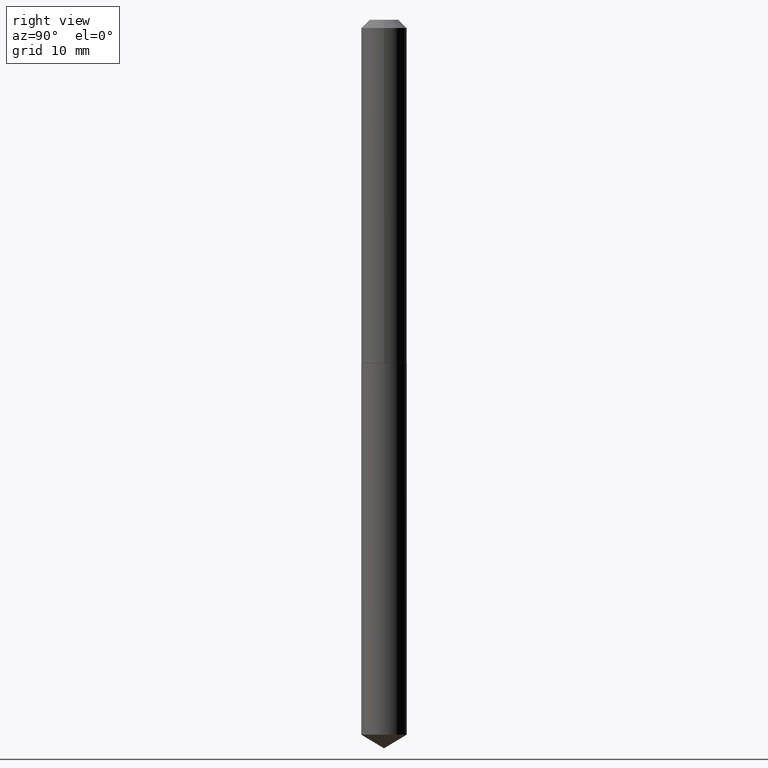
[diagram: clean part render]
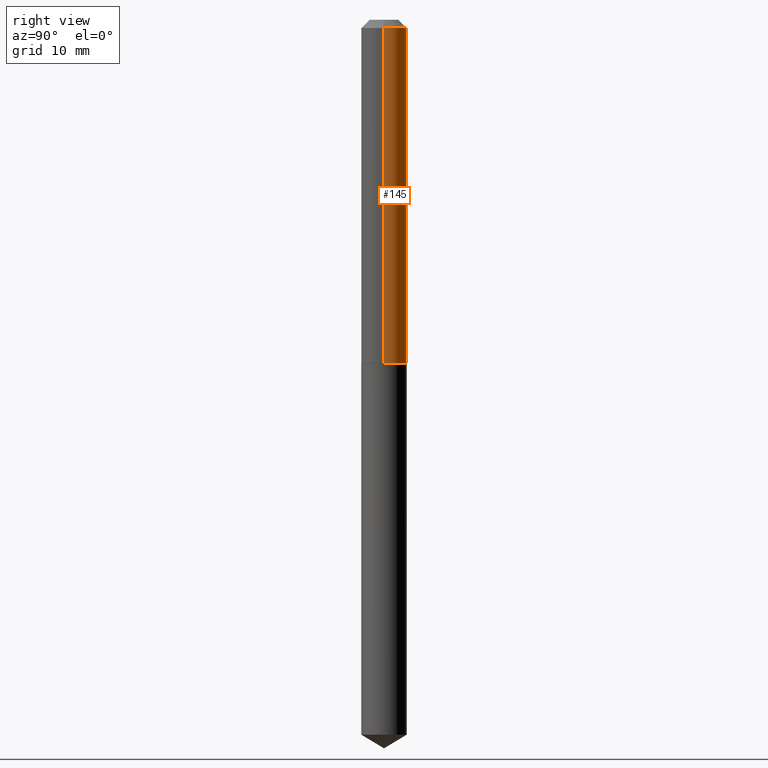
[diagram: same view with one face highlighted and labeled with its STEP entity id]
A machine part, right view. The second image highlights one B-rep face of the part: STEP entity #145.
In plain terms, the highlighted cylindrical surface (edge-blend (fillet) strip) has radius 2.1831 mm, axis along (-0, 0, 1).
Its self-contained STEP definition (entity closure, byte-faithful):
#7 = VERTEX_POINT ( 'NONE', #247 ) ;
#16 = DIRECTION ( 'NONE',  ( -2.445468806185136877E-29, 3.491481338843145188E-15, 1.000000000000000000 ) ) ;
#25 = VERTEX_POINT ( 'NONE', #285 ) ;
#36 = AXIS2_PLACEMENT_3D ( 'NONE', #217, #344, #43 ) ;
#43 = DIRECTION ( 'NONE',  ( 1.000000000000000000, -6.982962677686266711E-15, 4.876176775795936353E-29 ) ) ;
#49 = DIRECTION ( 'NONE',  ( 1.000000000000000000, -6.982962677686266711E-15, 0.000000000000000000 ) ) ;
#50 = CARTESIAN_POINT ( 'NONE',  ( -0.08595000000000005413, 6.107114813858064944E-16, -4.227824710074094392E-30 ) ) ;
#54 = VECTOR ( 'NONE', #229, 39.37007874015748143 ) ;
#55 = CARTESIAN_POINT ( 'NONE',  ( 3.170305760338410638E-29, -4.526356407676253525E-15, -1.296399999999999775 ) ) ;
#134 = LINE ( 'NONE', #258, #54 ) ;
#142 = LINE ( 'NONE', #50, #376 ) ;
#145 = ADVANCED_FACE ( 'NONE', ( #251 ), #372, .T. ) ;
#148 = ORIENTED_EDGE ( 'NONE', *, *, #216, .F. ) ;
#216 = EDGE_CURVE ( 'NONE', #25, #7, #134, .T. ) ;
#217 = CARTESIAN_POINT ( 'NONE',  ( 0.000000000000000000, 0.000000000000000000, 0.000000000000000000 ) ) ;
#229 = DIRECTION ( 'NONE',  ( -2.445468806185136877E-29, 3.491481338843145188E-15, 1.000000000000000000 ) ) ;
#233 = AXIS2_PLACEMENT_3D ( 'NONE', #55, #389, #298 ) ;
#238 = CARTESIAN_POINT ( 'NONE',  ( -0.08594999999999998475, -1.707021118371743832E-15, -0.03125000000000020123 ) ) ;
#247 = CARTESIAN_POINT ( 'NONE',  ( 0.08594999999999998475, -7.092944339859834254E-16, -0.03125000000000020123 ) ) ;
#250 = CIRCLE ( 'NONE', #311, 0.08594999999999998475 ) ;
#251 = FACE_OUTER_BOUND ( 'NONE', #390, .T. ) ;
#252 = EDGE_CURVE ( 'NONE', #359, #365, #142, .T. ) ;
#255 = EDGE_CURVE ( 'NONE', #7, #365, #250, .T. ) ;
#258 = CARTESIAN_POINT ( 'NONE',  ( 0.08595000000000005413, -6.001856421471350150E-16, 4.191073938796610043E-30 ) ) ;
#285 = CARTESIAN_POINT ( 'NONE',  ( 0.08595000000000012352, -5.126542049823388540E-15, -1.296399999999999775 ) ) ;
#292 = CARTESIAN_POINT ( 'NONE',  ( 7.642090019328600035E-31, -1.091087918388489897E-16, -0.03125000000000020123 ) ) ;
#295 = CIRCLE ( 'NONE', #233, 0.08595000000000012352 ) ;
#298 = DIRECTION ( 'NONE',  ( 1.000000000000000000, -6.982962677686262766E-15, 0.000000000000000000 ) ) ;
#311 = AXIS2_PLACEMENT_3D ( 'NONE', #292, #379, #49 ) ;
#331 = ORIENTED_EDGE ( 'NONE', *, *, #255, .F. ) ;
#344 = DIRECTION ( 'NONE',  ( -2.445468806185136597E-29, 3.491481338843145583E-15, 1.000000000000000000 ) ) ;
#357 = CARTESIAN_POINT ( 'NONE',  ( -0.08595000000000012352, -3.915644926290446044E-15, -1.296399999999999775 ) ) ;
#359 = VERTEX_POINT ( 'NONE', #357 ) ;
#361 = ORIENTED_EDGE ( 'NONE', *, *, #252, .T. ) ;
#365 = VERTEX_POINT ( 'NONE', #238 ) ;
#372 = CYLINDRICAL_SURFACE ( 'NONE', #36, 0.08595000000000005413 ) ;
#374 = ORIENTED_EDGE ( 'NONE', *, *, #385, .T. ) ;
#376 = VECTOR ( 'NONE', #16, 39.37007874015748143 ) ;
#379 = DIRECTION ( 'NONE',  ( -2.445468806185136597E-29, 3.491481338843145583E-15, 1.000000000000000000 ) ) ;
#385 = EDGE_CURVE ( 'NONE', #25, #359, #295, .T. ) ;
#389 = DIRECTION ( 'NONE',  ( -2.445468806185136597E-29, 3.491481338843145583E-15, 1.000000000000000000 ) ) ;
#390 = EDGE_LOOP ( 'NONE', ( #374, #361, #331, #148 ) ) ;